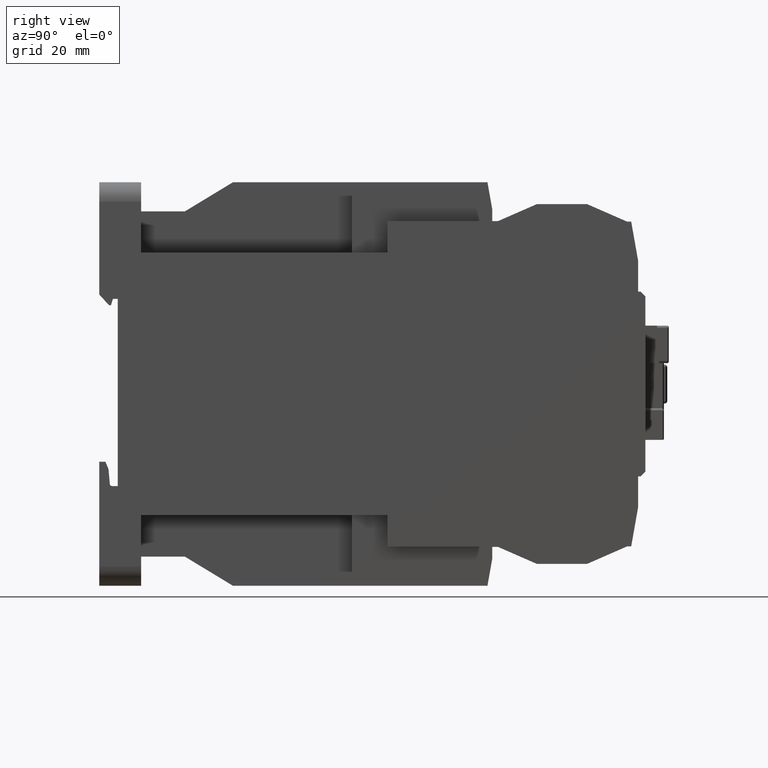
[diagram: clean part render]
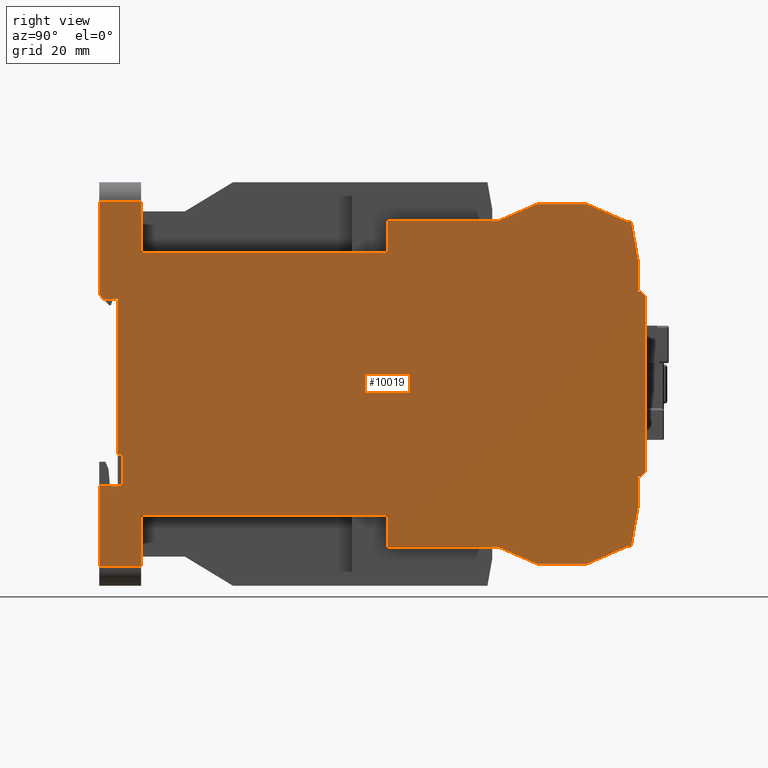
[diagram: same view with one face highlighted and labeled with its STEP entity id]
A machine part, right view. The second image highlights one B-rep face of the part: STEP entity #10019.
In plain terms, the highlighted planar face has unit normal (1, 0, 0).
Its self-contained STEP definition (entity closure, byte-faithful):
#64 = EDGE_CURVE ( 'NONE', #22781, #8776, #28979, .T. ) ;
#199 = ORIENTED_EDGE ( 'NONE', *, *, #64, .T. ) ;
#383 = VERTEX_POINT ( 'NONE', #20493 ) ;
#704 = LINE ( 'NONE', #3794, #16546 ) ;
#717 = VECTOR ( 'NONE', #12147, 39.37007874015748143 ) ;
#817 = DIRECTION ( 'NONE',  ( 0.000000000000000000, 0.000000000000000000, 1.000000000000000000 ) ) ;
#1076 = CARTESIAN_POINT ( 'NONE',  ( 0.8858267716535432879, -0.7874015748031496509, 1.062992125984252079 ) ) ;
#1105 = CARTESIAN_POINT ( 'NONE',  ( 0.8858267716535432879, -2.933070866141732402, -0.8267716535433071723 ) ) ;
#1121 = CARTESIAN_POINT ( 'NONE',  ( 0.8858267716535432879, 1.184621423739657509, 1.314960629921259949 ) ) ;
#1213 = LINE ( 'NONE', #20208, #24040 ) ;
#1325 = CARTESIAN_POINT ( 'NONE',  ( 0.8858267716535432879, 1.240157480314933114, -1.000000000000000000 ) ) ;
#1405 = VERTEX_POINT ( 'NONE', #19232 ) ;
#1428 = CARTESIAN_POINT ( 'NONE',  ( 0.8858267716535432879, 1.240157492036881859, 0.9999999009355177160 ) ) ;
#1492 = VECTOR ( 'NONE', #13864, 39.37007874015748854 ) ;
#1664 = CARTESIAN_POINT ( 'NONE',  ( 0.8858267716535432879, 0.1062992125985025710, 1.318897637795275690 ) ) ;
#1945 = LINE ( 'NONE', #12655, #34304 ) ;
#2214 = CARTESIAN_POINT ( 'NONE',  ( 0.8858267716535432879, 1.240157480314933114, -1.000000000000000000 ) ) ;
#2224 = DIRECTION ( 'NONE',  ( 1.000000000000000000, 0.000000000000000000, 0.000000000000000000 ) ) ;
#2497 = VECTOR ( 'NONE', #10728, 39.37007874015748143 ) ;
#2653 = CARTESIAN_POINT ( 'NONE',  ( 0.8858267716535432879, 1.259842519685039353, -0.7480314960629921295 ) ) ;
#2862 = VERTEX_POINT ( 'NONE', #5315 ) ;
#3159 = ORIENTED_EDGE ( 'NONE', *, *, #6442, .T. ) ;
#3300 = CARTESIAN_POINT ( 'NONE',  ( 0.8858267716535432879, -0.7874015748031496509, -1.318897637795275690 ) ) ;
#3346 = ORIENTED_EDGE ( 'NONE', *, *, #14859, .T. ) ;
#3477 = VERTEX_POINT ( 'NONE', #24898 ) ;
#3519 = DIRECTION ( 'NONE',  ( 0.000000000000000000, 1.000000000000000000, 0.000000000000000000 ) ) ;
#3626 = ORIENTED_EDGE ( 'NONE', *, *, #23619, .T. ) ;
#3639 = ORIENTED_EDGE ( 'NONE', *, *, #35663, .T. ) ;
#3647 = VECTOR ( 'NONE', #817, 39.37007874015748143 ) ;
#3690 = VECTOR ( 'NONE', #33044, 39.37007874015748143 ) ;
#3741 = DIRECTION ( 'NONE',  ( 0.000000000000000000, 0.7071067811865490160, 0.7071067811865460184 ) ) ;
#3794 = CARTESIAN_POINT ( 'NONE',  ( 0.8858267716535432879, 0.8267716535433387026, -1.456692913385801091 ) ) ;
#4188 = CARTESIAN_POINT ( 'NONE',  ( 0.8858267716535432879, -3.122047244094487972, -0.8267716535433071723 ) ) ;
#4196 = VERTEX_POINT ( 'NONE', #6633 ) ;
#4243 = VECTOR ( 'NONE', #32042, 39.37007874015748143 ) ;
#4306 = VECTOR ( 'NONE', #34086, 39.37007874015748143 ) ;
#4498 = LINE ( 'NONE', #32145, #19901 ) ;
#4573 = DIRECTION ( 'NONE',  ( 0.000000000000000000, -0.9161573349021993051, -0.4008188340196846555 ) ) ;
#4696 = EDGE_CURVE ( 'NONE', #12838, #10142, #1945, .T. ) ;
#4737 = EDGE_CURVE ( 'NONE', #16821, #20283, #4498, .T. ) ;
#4811 = CARTESIAN_POINT ( 'NONE',  ( 0.8858267716535432879, -3.089827112221236405, 0.6889763779527560139 ) ) ;
#4861 = CARTESIAN_POINT ( 'NONE',  ( 0.8858267716535432879, 1.240157480314960647, 0.7480314960629921295 ) ) ;
#4942 = CARTESIAN_POINT ( 'NONE',  ( 0.8858267716535432879, 0.4212598425197739971, 1.456692913385826849 ) ) ;
#4997 = VECTOR ( 'NONE', #10642, 39.37007874015748143 ) ;
#5204 = VERTEX_POINT ( 'NONE', #10769 ) ;
#5315 = CARTESIAN_POINT ( 'NONE',  ( 0.8858267716535432879, 0.4212598425197739971, 1.456692913385826849 ) ) ;
#5875 = VECTOR ( 'NONE', #28177, 39.37007874015748143 ) ;
#5897 = LINE ( 'NONE', #30837, #1492 ) ;
#5906 = LINE ( 'NONE', #12081, #4306 ) ;
#5909 = EDGE_CURVE ( 'NONE', #12587, #3477, #14867, .T. ) ;
#6247 = VERTEX_POINT ( 'NONE', #20589 ) ;
#6433 = EDGE_CURVE ( 'NONE', #12808, #22781, #19280, .T. ) ;
#6442 = EDGE_CURVE ( 'NONE', #13466, #24322, #5897, .T. ) ;
#6633 = CARTESIAN_POINT ( 'NONE',  ( 0.8858267716535432879, -2.783464566929133799, -1.476377952755905554 ) ) ;
#6656 = ORIENTED_EDGE ( 'NONE', *, *, #5909, .F. ) ;
#6684 = DIRECTION ( 'NONE',  ( 0.000000000000000000, 0.9161573349021923107, -0.4008188340197002542 ) ) ;
#6700 = VECTOR ( 'NONE', #3741, 39.37007874015748143 ) ;
#6774 = CARTESIAN_POINT ( 'NONE',  ( 0.8858267716535432879, -2.783464566929133799, 1.476377952755905554 ) ) ;
#6871 = EDGE_CURVE ( 'NONE', #27275, #15262, #28033, .T. ) ;
#7086 = ORIENTED_EDGE ( 'NONE', *, *, #20812, .T. ) ;
#7128 = DIRECTION ( 'NONE',  ( 0.000000000000000000, -0.9161573349021899793, 0.4008188340197060273 ) ) ;
#7398 = CARTESIAN_POINT ( 'NONE',  ( 0.8858267716535432879, 0.000000000000000000, -1.476377952755905554 ) ) ;
#7399 = LINE ( 'NONE', #26694, #23327 ) ;
#7571 = CARTESIAN_POINT ( 'NONE',  ( 0.8858267716535432879, -3.122047244094487972, 1.633858267716535639 ) ) ;
#7680 = VECTOR ( 'NONE', #14764, 39.37007874015748143 ) ;
#8022 = DIRECTION ( 'NONE',  ( 0.000000000000000000, 1.000000000000000000, 0.000000000000000000 ) ) ;
#8130 = ORIENTED_EDGE ( 'NONE', *, *, #19197, .T. ) ;
#8386 = ORIENTED_EDGE ( 'NONE', *, *, #4737, .T. ) ;
#8511 = CARTESIAN_POINT ( 'NONE',  ( 0.8858267716535432879, -0.7874015748031496509, 1.318897637795275690 ) ) ;
#8540 = ORIENTED_EDGE ( 'NONE', *, *, #10437, .T. ) ;
#8726 = CARTESIAN_POINT ( 'NONE',  ( 0.8858267716535432879, -3.122047244094487972, -0.8267716535433071723 ) ) ;
#8776 = VERTEX_POINT ( 'NONE', #6774 ) ;
#9229 = LINE ( 'NONE', #22760, #19252 ) ;
#9320 = EDGE_LOOP ( 'NONE', ( #8130, #31801, #13218, #3626, #16088, #15394, #7086, #23736, #3639, #31412, #8386, #34933, #20571, #10583, #29646, #35089, #21398, #32367, #30510, #12508, #9943, #30859, #29678, #8540, #21968, #21798, #199, #10027, #12142, #3159, #17088, #15773, #31979, #6656, #3346 ) ) ;
#9508 = VECTOR ( 'NONE', #9851, 39.37007874015748143 ) ;
#9692 = CARTESIAN_POINT ( 'NONE',  ( 0.8858267716535432879, -2.972440944881889813, -0.8267716535433071723 ) ) ;
#9851 = DIRECTION ( 'NONE',  ( 0.000000000000000000, -0.7071067811865490160, 0.7071067811865460184 ) ) ;
#9943 = ORIENTED_EDGE ( 'NONE', *, *, #32868, .T. ) ;
#10019 = ADVANCED_FACE ( 'NONE', ( #16147 ), #13965, .T. ) ;
#10027 = ORIENTED_EDGE ( 'NONE', *, *, #35467, .T. ) ;
#10041 = VERTEX_POINT ( 'NONE', #11272 ) ;
#10133 = DIRECTION ( 'NONE',  ( 0.000000000000000000, 0.000000000000000000, 1.000000000000000000 ) ) ;
#10142 = VERTEX_POINT ( 'NONE', #1121 ) ;
#10437 = EDGE_CURVE ( 'NONE', #13668, #21622, #25296, .T. ) ;
#10583 = ORIENTED_EDGE ( 'NONE', *, *, #30210, .T. ) ;
#10640 = CARTESIAN_POINT ( 'NONE',  ( 0.8858267716535432879, -2.783464566929133799, -1.062992125984252079 ) ) ;
#10642 = DIRECTION ( 'NONE',  ( 0.000000000000000000, 1.000000000000000000, 0.000000000000000000 ) ) ;
#10728 = DIRECTION ( 'NONE',  ( 0.000000000000000000, 0.000000000000000000, -1.000000000000000000 ) ) ;
#10769 = CARTESIAN_POINT ( 'NONE',  ( 0.8858267716535432879, -3.122047244094487972, -1.476377952755905554 ) ) ;
#10954 = VERTEX_POINT ( 'NONE', #21610 ) ;
#11216 = CARTESIAN_POINT ( 'NONE',  ( 0.8858267716535432879, 1.299212598425196985, 0.7086614173228346081 ) ) ;
#11272 = CARTESIAN_POINT ( 'NONE',  ( 0.8858267716535432879, 1.259842519685039353, 0.7480314960629921295 ) ) ;
#11293 = DIRECTION ( 'NONE',  ( 0.000000000000000000, 5.337610695313240538E-16, -1.000000000000000000 ) ) ;
#11750 = CARTESIAN_POINT ( 'NONE',  ( 0.8858267716535432879, 1.150731160021539523, -1.314960629301586525 ) ) ;
#11822 = CARTESIAN_POINT ( 'NONE',  ( 0.8858267716535432879, 0.1062992125984911496, -1.318897637795275690 ) ) ;
#11944 = LINE ( 'NONE', #11750, #28483 ) ;
#11980 = VECTOR ( 'NONE', #32536, 39.37007874015748143 ) ;
#12044 = EDGE_CURVE ( 'NONE', #10142, #32721, #28081, .T. ) ;
#12081 = CARTESIAN_POINT ( 'NONE',  ( 0.8858267716535432879, 0.000000000000000000, -0.5669291338582677087 ) ) ;
#12142 = ORIENTED_EDGE ( 'NONE', *, *, #24421, .T. ) ;
#12147 = DIRECTION ( 'NONE',  ( 0.000000000000000000, 0.000000000000000000, 1.000000000000000000 ) ) ;
#12271 = EDGE_CURVE ( 'NONE', #2862, #13668, #24092, .T. ) ;
#12295 = VERTEX_POINT ( 'NONE', #35107 ) ;
#12508 = ORIENTED_EDGE ( 'NONE', *, *, #12044, .T. ) ;
#12587 = VERTEX_POINT ( 'NONE', #15413 ) ;
#12596 = CARTESIAN_POINT ( 'NONE',  ( 0.8858267716535432879, -2.783464566929133799, 1.062992125984252079 ) ) ;
#12655 = CARTESIAN_POINT ( 'NONE',  ( 0.8858267716535432879, 1.240157492036881859, 0.9999999009355177160 ) ) ;
#12756 = EDGE_CURVE ( 'NONE', #21622, #12808, #35756, .T. ) ;
#12808 = VERTEX_POINT ( 'NONE', #1076 ) ;
#12833 = EDGE_CURVE ( 'NONE', #10954, #16821, #11944, .T. ) ;
#12838 = VERTEX_POINT ( 'NONE', #1428 ) ;
#12900 = LINE ( 'NONE', #8726, #2497 ) ;
#13002 = LINE ( 'NONE', #24002, #34439 ) ;
#13031 = CARTESIAN_POINT ( 'NONE',  ( 0.8858267716535432879, -0.7874015748031496509, -1.318897637795275690 ) ) ;
#13113 = VERTEX_POINT ( 'NONE', #32833 ) ;
#13188 = EDGE_CURVE ( 'NONE', #27283, #30656, #14385, .T. ) ;
#13218 = ORIENTED_EDGE ( 'NONE', *, *, #34723, .T. ) ;
#13313 = EDGE_CURVE ( 'NONE', #20771, #10041, #23382, .T. ) ;
#13465 = VECTOR ( 'NONE', #30612, 39.37007874015748143 ) ;
#13466 = VERTEX_POINT ( 'NONE', #21925 ) ;
#13668 = VERTEX_POINT ( 'NONE', #1664 ) ;
#13864 = DIRECTION ( 'NONE',  ( 0.000000000000000000, 0.6726727939957678482, -0.7399400733964387467 ) ) ;
#13965 = PLANE ( 'NONE',  #14533 ) ;
#14063 = EDGE_CURVE ( 'NONE', #5204, #4196, #29413, .T. ) ;
#14385 = LINE ( 'NONE', #25378, #18143 ) ;
#14486 = CARTESIAN_POINT ( 'NONE',  ( 0.8858267716535432879, 1.184621423508134042, -1.314960629301586525 ) ) ;
#14533 = AXIS2_PLACEMENT_3D ( 'NONE', #16314, #2224, #8022 ) ;
#14646 = CARTESIAN_POINT ( 'NONE',  ( 0.8858267716535432879, 0.1062992125985025710, 1.318897637795275690 ) ) ;
#14764 = DIRECTION ( 'NONE',  ( 0.000000000000000000, 0.000000000000000000, 1.000000000000000000 ) ) ;
#14793 = VECTOR ( 'NONE', #16230, 39.37007874015748143 ) ;
#14859 = EDGE_CURVE ( 'NONE', #12587, #33248, #21523, .T. ) ;
#14867 = LINE ( 'NONE', #1105, #717 ) ;
#15015 = CARTESIAN_POINT ( 'NONE',  ( 0.8858267716535432879, -3.089827112221236405, 0.6889763779527560139 ) ) ;
#15262 = VERTEX_POINT ( 'NONE', #11822 ) ;
#15370 = DIRECTION ( 'NONE',  ( 0.000000000000000000, 1.000000000000000000, 0.000000000000000000 ) ) ;
#15387 = VECTOR ( 'NONE', #33636, 39.37007874015748143 ) ;
#15394 = ORIENTED_EDGE ( 'NONE', *, *, #6871, .T. ) ;
#15413 = CARTESIAN_POINT ( 'NONE',  ( 0.8858267716535432879, -2.933070866141732402, -0.8267716535433071723 ) ) ;
#15773 = ORIENTED_EDGE ( 'NONE', *, *, #31267, .T. ) ;
#15777 = VECTOR ( 'NONE', #26856, 39.37007874015748143 ) ;
#15971 = LINE ( 'NONE', #2214, #4243 ) ;
#16088 = ORIENTED_EDGE ( 'NONE', *, *, #17983, .T. ) ;
#16124 = EDGE_CURVE ( 'NONE', #10041, #32509, #1213, .T. ) ;
#16147 = FACE_OUTER_BOUND ( 'NONE', #9320, .T. ) ;
#16157 = CARTESIAN_POINT ( 'NONE',  ( 0.8858267716535432879, 1.150731158605165394, 1.314960629921259949 ) ) ;
#16230 = DIRECTION ( 'NONE',  ( 0.000000000000000000, 1.000000000000000000, 1.368618127003397943E-16 ) ) ;
#16314 = CARTESIAN_POINT ( 'NONE',  ( 0.8858267716535432879, 0.000000000000000000, 0.000000000000000000 ) ) ;
#16435 = CARTESIAN_POINT ( 'NONE',  ( 0.8858267716535432879, 0.4212598425196968366, -1.456692913385801091 ) ) ;
#16546 = VECTOR ( 'NONE', #19878, 39.37007874015748143 ) ;
#16821 = VERTEX_POINT ( 'NONE', #14486 ) ;
#16843 = CARTESIAN_POINT ( 'NONE',  ( 0.8858267716535432879, 0.8267716535433387026, -1.456692913385801091 ) ) ;
#17088 = ORIENTED_EDGE ( 'NONE', *, *, #25270, .T. ) ;
#17107 = VERTEX_POINT ( 'NONE', #24195 ) ;
#17983 = EDGE_CURVE ( 'NONE', #19953, #27275, #32778, .T. ) ;
#18143 = VECTOR ( 'NONE', #3519, 39.37007874015748143 ) ;
#18410 = CARTESIAN_POINT ( 'NONE',  ( 0.8858267716535432879, -0.7874015748031496509, -1.062992125984252079 ) ) ;
#18436 = DIRECTION ( 'NONE',  ( 0.000000000000000000, 4.652139119891265034E-08, 0.9999999999999988898 ) ) ;
#18960 = DIRECTION ( 'NONE',  ( 0.000000000000000000, 0.000000000000000000, -1.000000000000000000 ) ) ;
#19066 = EDGE_CURVE ( 'NONE', #20283, #12295, #15971, .T. ) ;
#19197 = EDGE_CURVE ( 'NONE', #33248, #5204, #12900, .T. ) ;
#19232 = CARTESIAN_POINT ( 'NONE',  ( 0.8858267716535432879, -2.783464566929133799, -1.062992125984252079 ) ) ;
#19252 = VECTOR ( 'NONE', #6684, 39.37007874015748854 ) ;
#19280 = LINE ( 'NONE', #33369, #30920 ) ;
#19358 = CARTESIAN_POINT ( 'NONE',  ( 0.8858267716535432879, -2.972440944881889813, -0.5669291338582677087 ) ) ;
#19604 = CARTESIAN_POINT ( 'NONE',  ( 0.8858267716535432879, 1.184621423739657509, 1.314960629921259949 ) ) ;
#19819 = DIRECTION ( 'NONE',  ( 0.000000000000000000, -1.000000000000000000, -1.368618127003397943E-16 ) ) ;
#19878 = DIRECTION ( 'NONE',  ( 0.000000000000000000, 0.9161573349021886470, 0.4008188340197089139 ) ) ;
#19901 = VECTOR ( 'NONE', #26520, 39.37007874015748854 ) ;
#19953 = VERTEX_POINT ( 'NONE', #18410 ) ;
#20208 = CARTESIAN_POINT ( 'NONE',  ( 0.8858267716535432879, 1.240157480314960647, 0.7480314960629921295 ) ) ;
#20283 = VERTEX_POINT ( 'NONE', #1325 ) ;
#20493 = CARTESIAN_POINT ( 'NONE',  ( 0.8858267716535432879, 0.8267716535433071723, 1.456692913385826849 ) ) ;
#20494 = LINE ( 'NONE', #34027, #32019 ) ;
#20571 = ORIENTED_EDGE ( 'NONE', *, *, #22064, .T. ) ;
#20589 = CARTESIAN_POINT ( 'NONE',  ( 0.8858267716535432879, 1.299212598425196985, -0.7086614173228346081 ) ) ;
#20771 = VERTEX_POINT ( 'NONE', #11216 ) ;
#20812 = EDGE_CURVE ( 'NONE', #15262, #27283, #9229, .T. ) ;
#20932 = DIRECTION ( 'NONE',  ( 0.000000000000000000, -0.1736481592095289739, 0.9848077562667456597 ) ) ;
#21146 = LINE ( 'NONE', #4861, #29186 ) ;
#21398 = ORIENTED_EDGE ( 'NONE', *, *, #16124, .T. ) ;
#21516 = VECTOR ( 'NONE', #18960, 39.37007874015748143 ) ;
#21523 = LINE ( 'NONE', #9692, #11980 ) ;
#21573 = LINE ( 'NONE', #16157, #25721 ) ;
#21610 = CARTESIAN_POINT ( 'NONE',  ( 0.8858267716535432879, 1.150731160021539523, -1.314960629301586525 ) ) ;
#21622 = VERTEX_POINT ( 'NONE', #22866 ) ;
#21798 = ORIENTED_EDGE ( 'NONE', *, *, #6433, .T. ) ;
#21841 = LINE ( 'NONE', #10640, #14793 ) ;
#21925 = CARTESIAN_POINT ( 'NONE',  ( 0.8858267716535432879, -3.122047244094487972, 0.7244185230133859399 ) ) ;
#21968 = ORIENTED_EDGE ( 'NONE', *, *, #12756, .T. ) ;
#22064 = EDGE_CURVE ( 'NONE', #12295, #25371, #7399, .T. ) ;
#22092 = VECTOR ( 'NONE', #11293, 39.37007874015748143 ) ;
#22760 = CARTESIAN_POINT ( 'NONE',  ( 0.8858267716535432879, 0.1062992125984911496, -1.318897637795275690 ) ) ;
#22781 = VERTEX_POINT ( 'NONE', #34408 ) ;
#22866 = CARTESIAN_POINT ( 'NONE',  ( 0.8858267716535432879, -0.7874015748031496509, 1.318897637795275690 ) ) ;
#23327 = VECTOR ( 'NONE', #15370, 39.37007874015748143 ) ;
#23382 = LINE ( 'NONE', #34588, #9508 ) ;
#23619 = EDGE_CURVE ( 'NONE', #1405, #19953, #21841, .T. ) ;
#23736 = ORIENTED_EDGE ( 'NONE', *, *, #13188, .T. ) ;
#24002 = CARTESIAN_POINT ( 'NONE',  ( 0.8858267716535432879, -2.972440944881889813, 0.6889763779527560139 ) ) ;
#24040 = VECTOR ( 'NONE', #34634, 39.37007874015748143 ) ;
#24092 = LINE ( 'NONE', #4942, #26161 ) ;
#24195 = CARTESIAN_POINT ( 'NONE',  ( 0.8858267716535432879, -3.122047244094487972, 1.476377952755905554 ) ) ;
#24322 = VERTEX_POINT ( 'NONE', #15015 ) ;
#24421 = EDGE_CURVE ( 'NONE', #17107, #13466, #30117, .T. ) ;
#24898 = CARTESIAN_POINT ( 'NONE',  ( 0.8858267716535432879, -2.933070866141732402, -0.5669291338582677087 ) ) ;
#25029 = EDGE_CURVE ( 'NONE', #6247, #20771, #34226, .T. ) ;
#25168 = VECTOR ( 'NONE', #32874, 39.37007874015748143 ) ;
#25215 = CARTESIAN_POINT ( 'NONE',  ( 0.8858267716535432879, 1.150731158605165394, 1.314960629921259949 ) ) ;
#25270 = EDGE_CURVE ( 'NONE', #24322, #13113, #31760, .T. ) ;
#25296 = LINE ( 'NONE', #14646, #5875 ) ;
#25371 = VERTEX_POINT ( 'NONE', #29019 ) ;
#25378 = CARTESIAN_POINT ( 'NONE',  ( 0.8858267716535432879, 0.4212598425196968366, -1.456692913385801091 ) ) ;
#25721 = VECTOR ( 'NONE', #7128, 39.37007874015748143 ) ;
#26161 = VECTOR ( 'NONE', #4573, 39.37007874015748143 ) ;
#26165 = DIRECTION ( 'NONE',  ( 0.000000000000000000, 1.000000000000000000, 0.000000000000000000 ) ) ;
#26520 = DIRECTION ( 'NONE',  ( 0.000000000000000000, 0.1736481776669630550, 0.9848077530122022472 ) ) ;
#26694 = CARTESIAN_POINT ( 'NONE',  ( 0.8858267716535432879, 1.240157480314933114, -0.7480314960629921295 ) ) ;
#26767 = EDGE_CURVE ( 'NONE', #383, #2862, #20494, .T. ) ;
#26856 = DIRECTION ( 'NONE',  ( 0.000000000000000000, 1.000000000000000000, 0.000000000000000000 ) ) ;
#27262 = CARTESIAN_POINT ( 'NONE',  ( 0.8858267716535432879, 0.000000000000000000, 1.476377952755905554 ) ) ;
#27275 = VERTEX_POINT ( 'NONE', #13031 ) ;
#27283 = VERTEX_POINT ( 'NONE', #16435 ) ;
#27392 = LINE ( 'NONE', #2653, #6700 ) ;
#28033 = LINE ( 'NONE', #3300, #15387 ) ;
#28081 = LINE ( 'NONE', #19604, #13465 ) ;
#28177 = DIRECTION ( 'NONE',  ( 0.000000000000000000, -1.000000000000000000, 0.000000000000000000 ) ) ;
#28270 = CARTESIAN_POINT ( 'NONE',  ( 0.8858267716535432879, 1.299212598425196985, -0.7086614173228346081 ) ) ;
#28483 = VECTOR ( 'NONE', #26165, 39.37007874015748143 ) ;
#28979 = LINE ( 'NONE', #12596, #7680 ) ;
#29019 = CARTESIAN_POINT ( 'NONE',  ( 0.8858267716535432879, 1.259842519685039353, -0.7480314960629921295 ) ) ;
#29186 = VECTOR ( 'NONE', #18436, 39.37007874015748143 ) ;
#29413 = LINE ( 'NONE', #7398, #4997 ) ;
#29646 = ORIENTED_EDGE ( 'NONE', *, *, #25029, .T. ) ;
#29678 = ORIENTED_EDGE ( 'NONE', *, *, #12271, .T. ) ;
#29817 = LINE ( 'NONE', #27262, #25168 ) ;
#30117 = LINE ( 'NONE', #7571, #21516 ) ;
#30210 = EDGE_CURVE ( 'NONE', #25371, #6247, #27392, .T. ) ;
#30225 = CARTESIAN_POINT ( 'NONE',  ( 0.8858267716535432879, -0.7874015748031496509, -1.062992125984252079 ) ) ;
#30317 = VECTOR ( 'NONE', #10133, 39.37007874015748143 ) ;
#30510 = ORIENTED_EDGE ( 'NONE', *, *, #4696, .T. ) ;
#30612 = DIRECTION ( 'NONE',  ( 0.000000000000000000, -1.000000000000000000, 0.000000000000000000 ) ) ;
#30656 = VERTEX_POINT ( 'NONE', #16843 ) ;
#30837 = CARTESIAN_POINT ( 'NONE',  ( 0.8858267716535432879, -3.122047244094487972, 0.7244185230133859399 ) ) ;
#30859 = ORIENTED_EDGE ( 'NONE', *, *, #26767, .T. ) ;
#30920 = VECTOR ( 'NONE', #19819, 39.37007874015748143 ) ;
#31267 = EDGE_CURVE ( 'NONE', #13113, #33402, #13002, .T. ) ;
#31412 = ORIENTED_EDGE ( 'NONE', *, *, #12833, .T. ) ;
#31529 = EDGE_CURVE ( 'NONE', #33402, #3477, #5906, .T. ) ;
#31760 = LINE ( 'NONE', #4811, #15777 ) ;
#31801 = ORIENTED_EDGE ( 'NONE', *, *, #14063, .T. ) ;
#31976 = CARTESIAN_POINT ( 'NONE',  ( 0.8858267716535432879, -2.783464566929133799, -1.633858267716535639 ) ) ;
#31979 = ORIENTED_EDGE ( 'NONE', *, *, #31529, .T. ) ;
#32019 = VECTOR ( 'NONE', #34194, 39.37007874015748143 ) ;
#32042 = DIRECTION ( 'NONE',  ( 0.000000000000000000, 0.000000000000000000, 1.000000000000000000 ) ) ;
#32145 = CARTESIAN_POINT ( 'NONE',  ( 0.8858267716535432879, 1.184621423508134042, -1.314960629301586525 ) ) ;
#32306 = DIRECTION ( 'NONE',  ( 0.000000000000000000, 0.000000000000000000, -1.000000000000000000 ) ) ;
#32367 = ORIENTED_EDGE ( 'NONE', *, *, #34761, .T. ) ;
#32509 = VERTEX_POINT ( 'NONE', #35321 ) ;
#32536 = DIRECTION ( 'NONE',  ( 0.000000000000000000, -1.000000000000000000, 0.000000000000000000 ) ) ;
#32721 = VERTEX_POINT ( 'NONE', #25215 ) ;
#32778 = LINE ( 'NONE', #30225, #22092 ) ;
#32833 = CARTESIAN_POINT ( 'NONE',  ( 0.8858267716535432879, -2.972440944881889813, 0.6889763779527560139 ) ) ;
#32868 = EDGE_CURVE ( 'NONE', #32721, #383, #21573, .T. ) ;
#32874 = DIRECTION ( 'NONE',  ( 0.000000000000000000, -1.000000000000000000, 0.000000000000000000 ) ) ;
#33044 = DIRECTION ( 'NONE',  ( 0.000000000000000000, 0.000000000000000000, -1.000000000000000000 ) ) ;
#33248 = VERTEX_POINT ( 'NONE', #4188 ) ;
#33369 = CARTESIAN_POINT ( 'NONE',  ( 0.8858267716535432879, -0.7874015748031496509, 1.062992125984252079 ) ) ;
#33402 = VERTEX_POINT ( 'NONE', #19358 ) ;
#33636 = DIRECTION ( 'NONE',  ( 0.000000000000000000, 1.000000000000000000, 0.000000000000000000 ) ) ;
#34027 = CARTESIAN_POINT ( 'NONE',  ( 0.8858267716535432879, 0.8267716535433071723, 1.456692913385826849 ) ) ;
#34086 = DIRECTION ( 'NONE',  ( 0.000000000000000000, 1.000000000000000000, 0.000000000000000000 ) ) ;
#34194 = DIRECTION ( 'NONE',  ( 0.000000000000000000, -1.000000000000000000, 0.000000000000000000 ) ) ;
#34226 = LINE ( 'NONE', #28270, #3647 ) ;
#34304 = VECTOR ( 'NONE', #20932, 39.37007874015748143 ) ;
#34408 = CARTESIAN_POINT ( 'NONE',  ( 0.8858267716535432879, -2.783464566929133799, 1.062992125984252079 ) ) ;
#34439 = VECTOR ( 'NONE', #32306, 39.37007874015748143 ) ;
#34518 = LINE ( 'NONE', #31976, #30317 ) ;
#34588 = CARTESIAN_POINT ( 'NONE',  ( 0.8858267716535432879, 1.259842519685039353, 0.7480314960629921295 ) ) ;
#34634 = DIRECTION ( 'NONE',  ( 0.000000000000000000, -1.000000000000000000, 6.938893903907219700E-15 ) ) ;
#34723 = EDGE_CURVE ( 'NONE', #4196, #1405, #34518, .T. ) ;
#34761 = EDGE_CURVE ( 'NONE', #32509, #12838, #21146, .T. ) ;
#34933 = ORIENTED_EDGE ( 'NONE', *, *, #19066, .T. ) ;
#35089 = ORIENTED_EDGE ( 'NONE', *, *, #13313, .T. ) ;
#35107 = CARTESIAN_POINT ( 'NONE',  ( 0.8858267716535432879, 1.240157480314933114, -0.7480314960629921295 ) ) ;
#35321 = CARTESIAN_POINT ( 'NONE',  ( 0.8858267716535432879, 1.240157480314960647, 0.7480314960629921295 ) ) ;
#35467 = EDGE_CURVE ( 'NONE', #8776, #17107, #29817, .T. ) ;
#35663 = EDGE_CURVE ( 'NONE', #30656, #10954, #704, .T. ) ;
#35756 = LINE ( 'NONE', #8511, #3690 ) ;